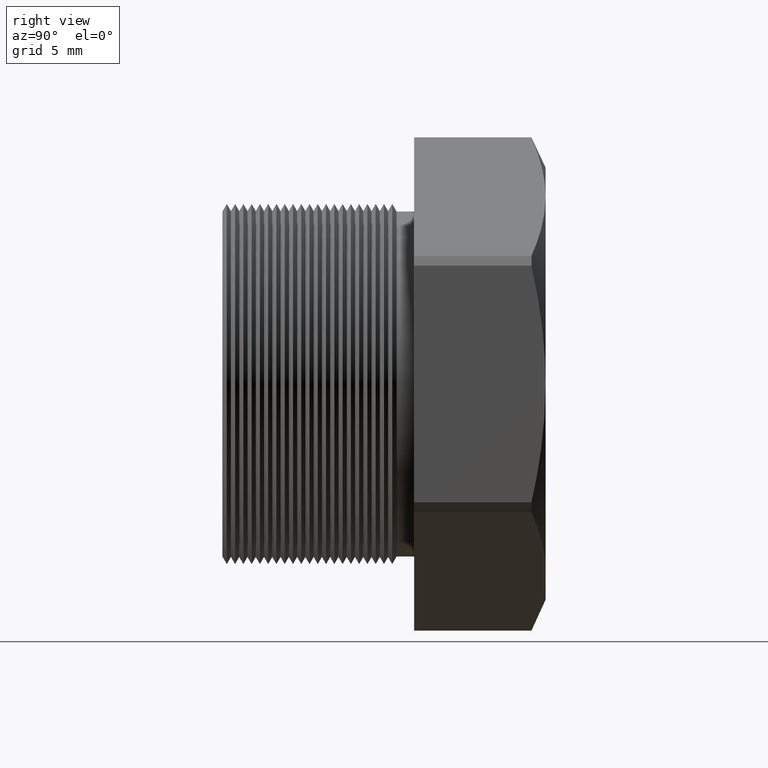
[diagram: clean part render]
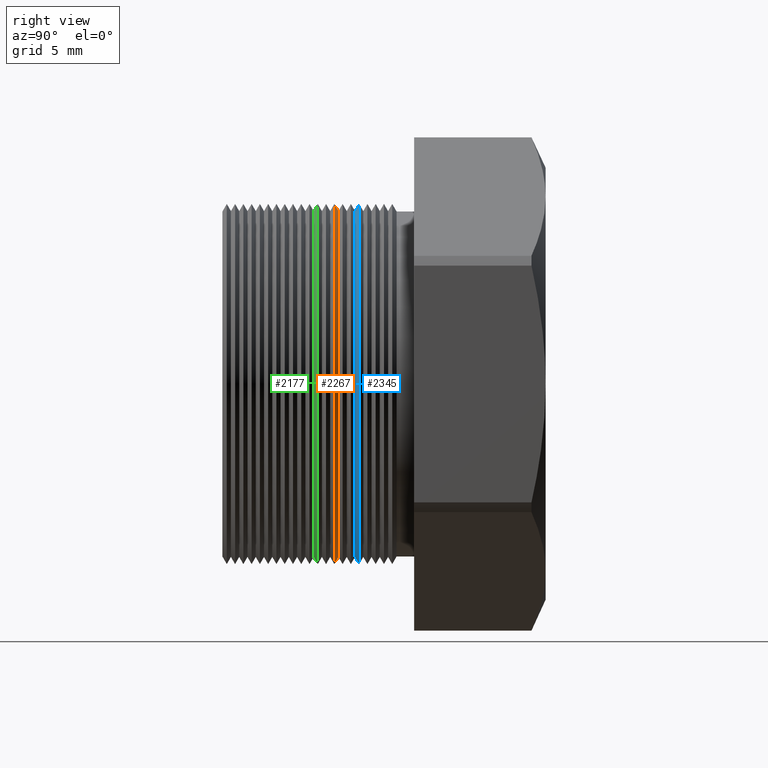
[diagram: same view with three faces highlighted in distinct colors, each labeled with its STEP entity id]
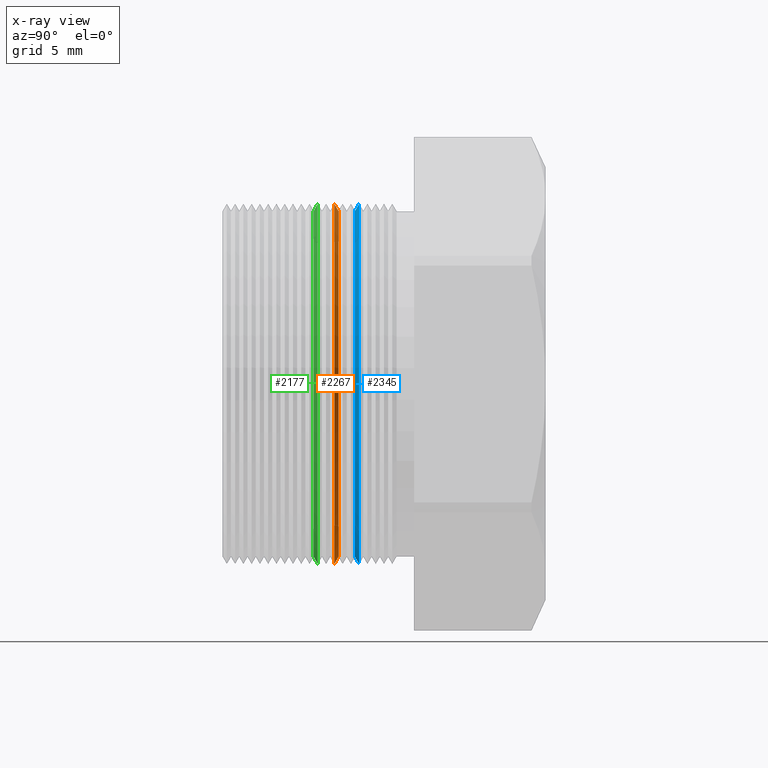
[diagram: x-ray of the same camera — body ghosted, the three highlighted faces saturated]
A machine part, right view with three faces highlighted in distinct colors.
The next image is the same camera in x-ray (body ghosted, the three faces saturated) — at least one of them is partly hidden behind the body in this view.
Their STEP definitions:

[orange] entity #2267 — the highlighted conical surface has half-angle 60 deg.
#2222 = VERTEX_POINT ( 'NONE', #6768 ) ;
#2224 = EDGE_CURVE ( 'NONE', #2225, #2222, #6767, .T. ) ;
#2225 = VERTEX_POINT ( 'NONE', #6762 ) ;
#2267 = ADVANCED_FACE ( 'NONE', ( #6876 ), #6871, .T. ) ;
#2268 = EDGE_LOOP ( 'NONE', ( #2270, #2278, #2281, #2282 ) ) ;
#2270 = ORIENTED_EDGE ( 'NONE', *, *, #2272, .T. ) ;
#2272 = EDGE_CURVE ( 'NONE', #2274, #2275, #6856, .T. ) ;
#2274 = VERTEX_POINT ( 'NONE', #6851 ) ;
#2275 = VERTEX_POINT ( 'NONE', #6850 ) ;
#2278 = ORIENTED_EDGE ( 'NONE', *, *, #2280, .T. ) ;
#2280 = EDGE_CURVE ( 'NONE', #2275, #2225, #6902, .T. ) ;
#2281 = ORIENTED_EDGE ( 'NONE', *, *, #2224, .T. ) ;
#2282 = ORIENTED_EDGE ( 'NONE', *, *, #2284, .F. ) ;
#2284 = EDGE_CURVE ( 'NONE', #2274, #2222, #6893, .T. ) ;
#6762 = CARTESIAN_POINT ( 'NONE',  ( 4.026318816969966800E-017, 0.02185489058294796300, 0.3287738815610546900 ) ) ;
#6763 = DIRECTION ( 'NONE',  ( 0.0000000000000000000, 0.0000000000000000000, 1.000000000000000000 ) ) ;
#6764 = DIRECTION ( 'NONE',  ( -0.0000000000000000000, 1.000000000000000000, -0.0000000000000000000 ) ) ;
#6765 = CARTESIAN_POINT ( 'NONE',  ( 0.0000000000000000000, 0.02185489058294796300, 0.0000000000000000000 ) ) ;
#6766 = AXIS2_PLACEMENT_3D ( 'NONE', #6765, #6764, #6763 ) ;
#6767 = CIRCLE ( 'NONE', #6766, 0.3287738815610546900 ) ;
#6768 = CARTESIAN_POINT ( 'NONE',  ( 0.0000000000000000000, 0.02185489058294796300, -0.3287738815610546900 ) ) ;
#6850 = CARTESIAN_POINT ( 'NONE',  ( 0.0000000000000000000, 0.02940489058294792600, 0.3156968979639097100 ) ) ;
#6851 = CARTESIAN_POINT ( 'NONE',  ( 3.946245386446235500E-017, 0.02940489058294792600, -0.3156968979639097100 ) ) ;
#6852 = DIRECTION ( 'NONE',  ( 0.0000000000000000000, 0.0000000000000000000, -1.000000000000000000 ) ) ;
#6853 = DIRECTION ( 'NONE',  ( 0.0000000000000000000, -1.000000000000000000, 0.0000000000000000000 ) ) ;
#6854 = CARTESIAN_POINT ( 'NONE',  ( 0.0000000000000000000, 0.02940489058294792600, 0.0000000000000000000 ) ) ;
#6855 = AXIS2_PLACEMENT_3D ( 'NONE', #6854, #6853, #6852 ) ;
#6856 = CIRCLE ( 'NONE', #6855, 0.3156968979639097100 ) ;
#6866 = DIRECTION ( 'NONE',  ( 0.0000000000000000000, 0.0000000000000000000, -1.000000000000000000 ) ) ;
#6867 = DIRECTION ( 'NONE',  ( 0.0000000000000000000, -1.000000000000000000, 0.0000000000000000000 ) ) ;
#6868 = CARTESIAN_POINT ( 'NONE',  ( 0.0000000000000000000, 0.02980724481000887300, 0.0000000000000000000 ) ) ;
#6869 = AXIS2_PLACEMENT_3D ( 'NONE', #6868, #6867, #6866 ) ;
#6871 = CONICAL_SURFACE ( 'NONE', #6869, 0.3150000000000000600, 1.047197551196598700 ) ;
#6876 = FACE_OUTER_BOUND ( 'NONE', #2268, .T. ) ;
#6890 = DIRECTION ( 'NONE',  ( 0.0000000000000000000, -0.4999999999999991100, -0.8660254037844391500 ) ) ;
#6891 = VECTOR ( 'NONE', #6890, 39.37007874015748100 ) ;
#6892 = CARTESIAN_POINT ( 'NONE',  ( 0.0000000000000000000, 0.02980724481000887300, -0.3150000000000000600 ) ) ;
#6893 = LINE ( 'NONE', #6892, #6891 ) ;
#6899 = DIRECTION ( 'NONE',  ( 1.060575238724907500E-016, -0.4999999999999991100, 0.8660254037844391500 ) ) ;
#6900 = VECTOR ( 'NONE', #6899, 39.37007874015748100 ) ;
#6901 = CARTESIAN_POINT ( 'NONE',  ( 3.857637417314163300E-017, 0.02980724481000887300, 0.3150000000000000600 ) ) ;
#6902 = LINE ( 'NONE', #6901, #6900 ) ;

[blue] entity #2345 — the highlighted conical surface has half-angle 60 deg.
#2299 = EDGE_LOOP ( 'NONE', ( #2346, #2348, #2351, #2358 ) ) ;
#2345 = ADVANCED_FACE ( 'NONE', ( #7030 ), #7029, .T. ) ;
#2346 = ORIENTED_EDGE ( 'NONE', *, *, #2375, .F. ) ;
#2348 = ORIENTED_EDGE ( 'NONE', *, *, #2349, .T. ) ;
#2349 = EDGE_CURVE ( 'NONE', #2378, #2350, #7018, .T. ) ;
#2350 = VERTEX_POINT ( 'NONE', #7014 ) ;
#2351 = ORIENTED_EDGE ( 'NONE', *, *, #2353, .F. ) ;
#2353 = EDGE_CURVE ( 'NONE', #2355, #2350, #7013, .T. ) ;
#2355 = VERTEX_POINT ( 'NONE', #7003 ) ;
#2358 = ORIENTED_EDGE ( 'NONE', *, *, #2359, .F. ) ;
#2359 = EDGE_CURVE ( 'NONE', #2380, #2355, #7066, .T. ) ;
#2375 = EDGE_CURVE ( 'NONE', #2378, #2380, #7092, .T. ) ;
#2378 = VERTEX_POINT ( 'NONE', #7083 ) ;
#2380 = VERTEX_POINT ( 'NONE', #7077 ) ;
#7003 = CARTESIAN_POINT ( 'NONE',  ( 4.026318816969966800E-017, 0.06715489058294796300, 0.3287738815610546900 ) ) ;
#7009 = DIRECTION ( 'NONE',  ( 0.0000000000000000000, 0.0000000000000000000, 1.000000000000000000 ) ) ;
#7010 = DIRECTION ( 'NONE',  ( -0.0000000000000000000, 1.000000000000000000, -0.0000000000000000000 ) ) ;
#7011 = CARTESIAN_POINT ( 'NONE',  ( 0.0000000000000000000, 0.06715489058294796300, 0.0000000000000000000 ) ) ;
#7012 = AXIS2_PLACEMENT_3D ( 'NONE', #7011, #7010, #7009 ) ;
#7013 = CIRCLE ( 'NONE', #7012, 0.3287738815610546900 ) ;
#7014 = CARTESIAN_POINT ( 'NONE',  ( 0.0000000000000000000, 0.06715489058294796300, -0.3287738815610546900 ) ) ;
#7015 = DIRECTION ( 'NONE',  ( 1.060575238724906300E-016, 0.5000000000000008900, -0.8660254037844380400 ) ) ;
#7016 = VECTOR ( 'NONE', #7015, 39.37007874015748100 ) ;
#7017 = CARTESIAN_POINT ( 'NONE',  ( 4.026318816969966200E-017, 0.06715489058294796300, -0.3287738815610546900 ) ) ;
#7018 = LINE ( 'NONE', #7017, #7016 ) ;
#7024 = DIRECTION ( 'NONE',  ( 0.0000000000000000000, 0.0000000000000000000, 1.000000000000000000 ) ) ;
#7025 = DIRECTION ( 'NONE',  ( -0.0000000000000000000, 1.000000000000000000, -0.0000000000000000000 ) ) ;
#7026 = CARTESIAN_POINT ( 'NONE',  ( 0.0000000000000000000, 0.06715489058294796300, 0.0000000000000000000 ) ) ;
#7027 = AXIS2_PLACEMENT_3D ( 'NONE', #7026, #7025, #7024 ) ;
#7029 = CONICAL_SURFACE ( 'NONE', #7027, 0.3287738815610546900, 1.047197551196596700 ) ;
#7030 = FACE_OUTER_BOUND ( 'NONE', #2299, .T. ) ;
#7059 = DIRECTION ( 'NONE',  ( 0.0000000000000000000, 0.5000000000000008900, 0.8660254037844380400 ) ) ;
#7060 = VECTOR ( 'NONE', #7059, 39.37007874015748100 ) ;
#7061 = CARTESIAN_POINT ( 'NONE',  ( 0.0000000000000000000, 0.06715489058294796300, 0.3287738815610546900 ) ) ;
#7066 = LINE ( 'NONE', #7061, #7060 ) ;
#7077 = CARTESIAN_POINT ( 'NONE',  ( 0.0000000000000000000, 0.05960489058294797500, 0.3156968979639098200 ) ) ;
#7083 = CARTESIAN_POINT ( 'NONE',  ( 3.946245386446236800E-017, 0.05960489058294797500, -0.3156968979639098200 ) ) ;
#7088 = DIRECTION ( 'NONE',  ( 0.0000000000000000000, 0.0000000000000000000, -1.000000000000000000 ) ) ;
#7089 = DIRECTION ( 'NONE',  ( 0.0000000000000000000, -1.000000000000000000, 0.0000000000000000000 ) ) ;
#7090 = CARTESIAN_POINT ( 'NONE',  ( 0.0000000000000000000, 0.05960489058294797500, 0.0000000000000000000 ) ) ;
#7091 = AXIS2_PLACEMENT_3D ( 'NONE', #7090, #7089, #7088 ) ;
#7092 = CIRCLE ( 'NONE', #7091, 0.3156968979639098200 ) ;

[green] entity #2177 — the highlighted conical surface has half-angle 60 deg.
#2177 = ADVANCED_FACE ( 'NONE', ( #6663 ), #6662, .T. ) ;
#2178 = EDGE_LOOP ( 'NONE', ( #2179, #2180, #2183, #2186 ) ) ;
#2179 = ORIENTED_EDGE ( 'NONE', *, *, #2197, .F. ) ;
#2180 = ORIENTED_EDGE ( 'NONE', *, *, #2181, .T. ) ;
#2181 = EDGE_CURVE ( 'NONE', #2198, #2182, #6720, .T. ) ;
#2182 = VERTEX_POINT ( 'NONE', #6716 ) ;
#2183 = ORIENTED_EDGE ( 'NONE', *, *, #2184, .F. ) ;
#2184 = EDGE_CURVE ( 'NONE', #2185, #2182, #6715, .T. ) ;
#2185 = VERTEX_POINT ( 'NONE', #6710 ) ;
#2186 = ORIENTED_EDGE ( 'NONE', *, *, #2187, .F. ) ;
#2187 = EDGE_CURVE ( 'NONE', #2199, #2185, #6709, .T. ) ;
#2197 = EDGE_CURVE ( 'NONE', #2198, #2199, #6751, .T. ) ;
#2198 = VERTEX_POINT ( 'NONE', #6746 ) ;
#2199 = VERTEX_POINT ( 'NONE', #6745 ) ;
#6662 = CONICAL_SURFACE ( 'NONE', #6724, 0.3287738815610546900, 1.047197551196596700 ) ;
#6663 = FACE_OUTER_BOUND ( 'NONE', #2178, .T. ) ;
#6706 = DIRECTION ( 'NONE',  ( 0.0000000000000000000, 0.5000000000000008900, 0.8660254037844380400 ) ) ;
#6707 = VECTOR ( 'NONE', #6706, 39.37007874015748100 ) ;
#6708 = CARTESIAN_POINT ( 'NONE',  ( 0.0000000000000000000, -0.008345109417052033400, 0.3287738815610546900 ) ) ;
#6709 = LINE ( 'NONE', #6708, #6707 ) ;
#6710 = CARTESIAN_POINT ( 'NONE',  ( 4.026318816969966800E-017, -0.008345109417052033400, 0.3287738815610546900 ) ) ;
#6711 = DIRECTION ( 'NONE',  ( 0.0000000000000000000, 0.0000000000000000000, 1.000000000000000000 ) ) ;
#6712 = DIRECTION ( 'NONE',  ( -0.0000000000000000000, 1.000000000000000000, -0.0000000000000000000 ) ) ;
#6713 = CARTESIAN_POINT ( 'NONE',  ( 0.0000000000000000000, -0.008345109417052033400, 0.0000000000000000000 ) ) ;
#6714 = AXIS2_PLACEMENT_3D ( 'NONE', #6713, #6712, #6711 ) ;
#6715 = CIRCLE ( 'NONE', #6714, 0.3287738815610546900 ) ;
#6716 = CARTESIAN_POINT ( 'NONE',  ( 0.0000000000000000000, -0.008345109417052033400, -0.3287738815610546900 ) ) ;
#6717 = DIRECTION ( 'NONE',  ( 1.060575238724906300E-016, 0.5000000000000008900, -0.8660254037844380400 ) ) ;
#6718 = VECTOR ( 'NONE', #6717, 39.37007874015748100 ) ;
#6719 = CARTESIAN_POINT ( 'NONE',  ( 4.026318816969966200E-017, -0.008345109417052033400, -0.3287738815610546900 ) ) ;
#6720 = LINE ( 'NONE', #6719, #6718 ) ;
#6721 = DIRECTION ( 'NONE',  ( 0.0000000000000000000, 0.0000000000000000000, 1.000000000000000000 ) ) ;
#6722 = DIRECTION ( 'NONE',  ( -0.0000000000000000000, 1.000000000000000000, -0.0000000000000000000 ) ) ;
#6723 = CARTESIAN_POINT ( 'NONE',  ( 0.0000000000000000000, -0.008345109417052033400, 0.0000000000000000000 ) ) ;
#6724 = AXIS2_PLACEMENT_3D ( 'NONE', #6723, #6722, #6721 ) ;
#6745 = CARTESIAN_POINT ( 'NONE',  ( 0.0000000000000000000, -0.01589510941705205000, 0.3156968979639097100 ) ) ;
#6746 = CARTESIAN_POINT ( 'NONE',  ( 3.946245386446235500E-017, -0.01589510941705205000, -0.3156968979639097100 ) ) ;
#6747 = DIRECTION ( 'NONE',  ( 0.0000000000000000000, 0.0000000000000000000, -1.000000000000000000 ) ) ;
#6748 = DIRECTION ( 'NONE',  ( 0.0000000000000000000, -1.000000000000000000, 0.0000000000000000000 ) ) ;
#6749 = CARTESIAN_POINT ( 'NONE',  ( 0.0000000000000000000, -0.01589510941705205000, 0.0000000000000000000 ) ) ;
#6750 = AXIS2_PLACEMENT_3D ( 'NONE', #6749, #6748, #6747 ) ;
#6751 = CIRCLE ( 'NONE', #6750, 0.3156968979639097100 ) ;